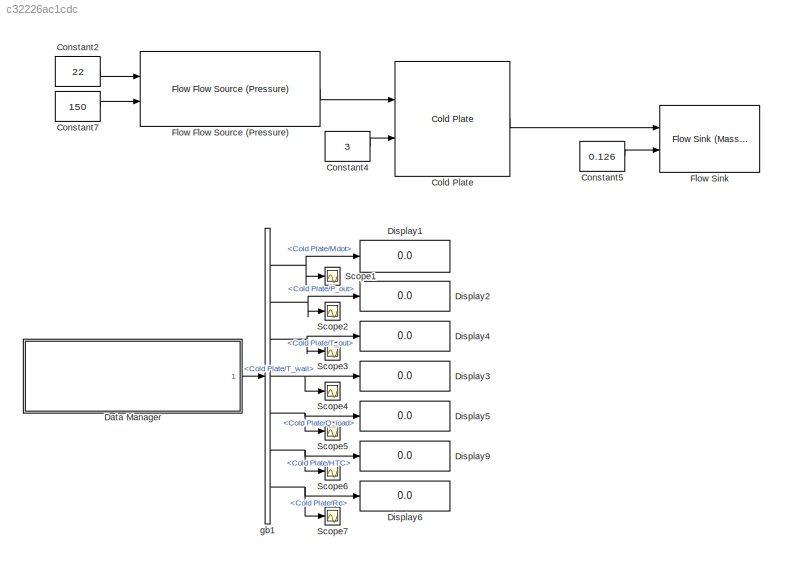
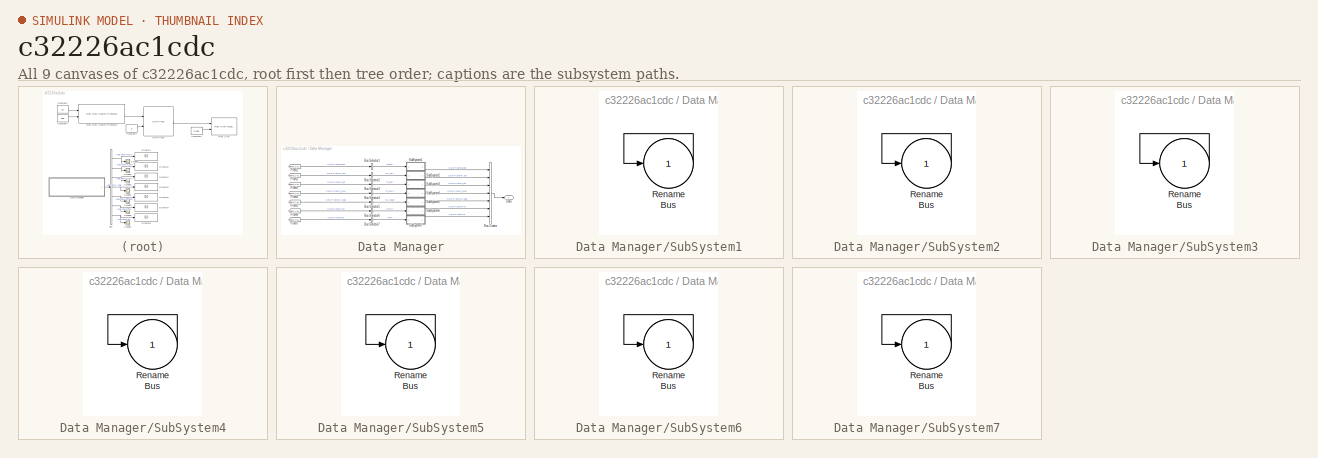
[diagram: thumbnail index - all 9 canvases of the model, root first then tree order]
MODEL slx_c32226ac1cdc
KIND model
BLOCK [Reference] Cold Plate  REF=DAEMOT_Lib/Components/Cold Plate
  Cp_wall = .9
  D = 0.007
  E = 2.4e6
  KL = 0
  L = 0.75
  M_wall = 0.77632
  PAF = 1
  P_init = 101
  Ports = [2, 1]
  SourceBlock = DAEMOT_Lib/Components/Cold Plate
  SourceType = Cold Plate
  T_init = 22
  Tw_init = 22
  dH = -0.2
  e_rough = 0.0015*1e-3
  f = 0.05
  fld = PG50
  t = 0.0015
  v = 0.4
BLOCK [Constant] Constant2
  Value = 22
BLOCK [Constant] Constant4
  Value = 3
BLOCK [Constant] Constant5
  Value = 0.126
BLOCK [Constant] Constant7
  Value = 150
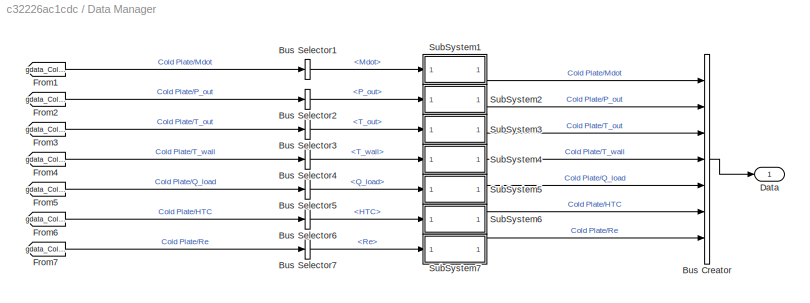
BLOCK [SubSystem] Data Manager
  AncestorBlock = DAEMOT_Lib/Support Functions/Data Manager
  OpenFcn = data_manager
  Ports = [0, 1]
  RequestExecContextInheritance = off
  UserDataPersistent = on
BLOCK [BusCreator] Data Manager/Bus Creator
  DisplayOption = bar
  Inputs = 7
  Ports = [7, 1]
BLOCK [BusSelector] Data Manager/Bus Selector1
  OutputSignals = Mdot
  Ports = [1, 1]
BLOCK [BusSelector] Data Manager/Bus Selector2
  OutputSignals = P_out
  Ports = [1, 1]
BLOCK [BusSelector] Data Manager/Bus Selector3
  OutputSignals = T_out
  Ports = [1, 1]
BLOCK [BusSelector] Data Manager/Bus Selector4
  OutputSignals = T_wall
  Ports = [1, 1]
BLOCK [BusSelector] Data Manager/Bus Selector5
  OutputSignals = Q_load
  Ports = [1, 1]
BLOCK [BusSelector] Data Manager/Bus Selector6
  OutputSignals = HTC
  Ports = [1, 1]
BLOCK [BusSelector] Data Manager/Bus Selector7
  OutputSignals = Re
  Ports = [1, 1]
BLOCK [Outport] Data Manager/Data
  IconDisplay = Port number
BLOCK [From] Data Manager/From1
  GotoTag = gdata_Cold_Plate_testColdPlatedata_sink1
  UserDataPersistent = on
BLOCK [From] Data Manager/From2
  GotoTag = gdata_Cold_Plate_testColdPlatedata_sink1
  UserDataPersistent = on
BLOCK [From] Data Manager/From3
  GotoTag = gdata_Cold_Plate_testColdPlatedata_sink1
  UserDataPersistent = on
BLOCK [From] Data Manager/From4
  GotoTag = gdata_Cold_Plate_testColdPlatedata_sink1
  UserDataPersistent = on
BLOCK [From] Data Manager/From5
  GotoTag = gdata_Cold_Plate_testColdPlatedata_sink1
  UserDataPersistent = on
BLOCK [From] Data Manager/From6
  GotoTag = gdata_Cold_Plate_testColdPlatedata_sink1
  UserDataPersistent = on
BLOCK [From] Data Manager/From7
  GotoTag = gdata_Cold_Plate_testColdPlatedata_sink1
  UserDataPersistent = on
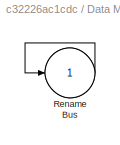
BLOCK [SubSystem] Data Manager/SubSystem1
  Ports = [1, 1]
  RequestExecContextInheritance = off
BLOCK [Outport] Data Manager/SubSystem1/Bus
  IconDisplay = Port number
BLOCK [Inport] Data Manager/SubSystem1/Rename
  IconDisplay = Port number
BLOCK [SubSystem] Data Manager/SubSystem2
  Ports = [1, 1]
  RequestExecContextInheritance = off
BLOCK [Outport] Data Manager/SubSystem2/Bus
  IconDisplay = Port number
BLOCK [Inport] Data Manager/SubSystem2/Rename
  IconDisplay = Port number
BLOCK [SubSystem] Data Manager/SubSystem3
  Ports = [1, 1]
  RequestExecContextInheritance = off
BLOCK [Outport] Data Manager/SubSystem3/Bus
  IconDisplay = Port number
BLOCK [Inport] Data Manager/SubSystem3/Rename
  IconDisplay = Port number
BLOCK [SubSystem] Data Manager/SubSystem4
  Ports = [1, 1]
  RequestExecContextInheritance = off
BLOCK [Outport] Data Manager/SubSystem4/Bus
  IconDisplay = Port number
BLOCK [Inport] Data Manager/SubSystem4/Rename
  IconDisplay = Port number
BLOCK [SubSystem] Data Manager/SubSystem5
  Ports = [1, 1]
  RequestExecContextInheritance = off
BLOCK [Outport] Data Manager/SubSystem5/Bus
  IconDisplay = Port number
BLOCK [Inport] Data Manager/SubSystem5/Rename
  IconDisplay = Port number
BLOCK [SubSystem] Data Manager/SubSystem6
  Ports = [1, 1]
  RequestExecContextInheritance = off
BLOCK [Outport] Data Manager/SubSystem6/Bus
  IconDisplay = Port number
BLOCK [Inport] Data Manager/SubSystem6/Rename
  IconDisplay = Port number
BLOCK [SubSystem] Data Manager/SubSystem7
  Ports = [1, 1]
  RequestExecContextInheritance = off
BLOCK [Outport] Data Manager/SubSystem7/Bus
  IconDisplay = Port number
BLOCK [Inport] Data Manager/SubSystem7/Rename
  IconDisplay = Port number
BLOCK [Display] Display1
  Decimation = 1
  Ports = [1]
BLOCK [Display] Display2
  Decimation = 1
  Ports = [1]
BLOCK [Display] Display3
  Decimation = 1
  Ports = [1]
BLOCK [Display] Display4
  Decimation = 1
  Ports = [1]
BLOCK [Display] Display5
  Decimation = 1
  Ports = [1]
BLOCK [Display] Display6
  Decimation = 1
  Ports = [1]
BLOCK [Display] Display9
  Decimation = 1
  Ports = [1]
BLOCK [Reference] Flow Flow Source (Pressure)  REF=DAEMOT_Lib/Components/Flow Flow Source (Pressure)
  M = 0
  M_ext = on
  P = 0
  P_ext = on
  Ports = [2, 1]
  SourceBlock = DAEMOT_Lib/Components/Flow Flow Source (Pressure)
  SourceType = Flow Source (Pressure)
  T = 0
  T_ext = on
BLOCK [Reference] Flow Sink  REF=DAEMOT_Lib/Components/Flow Sink (Mass Flow Rate)
  M = 0
  M_ext = on
  P = 0
  P_ext = on
  Ports = [2]
  SourceBlock = DAEMOT_Lib/Components/Flow Sink (Mass Flow Rate)
  SourceType = Flow Sink (Mass Flow Rate)
  T = 0
  T_ext = on
BLOCK [Scope] Scope1
  Floating = off
  LimitDataPoints = off
  NumInputPorts = 1
  Ports = [1]
  ShowLegends = off
  ZoomMode = xonly
BLOCK [Scope] Scope2
  Floating = off
  LimitDataPoints = off
  NumInputPorts = 1
  Ports = [1]
  SaveName = ScopeData1
  ShowLegends = off
BLOCK [Scope] Scope3
  Floating = off
  LimitDataPoints = off
  NumInputPorts = 1
  Ports = [1]
  SaveName = ScopeData2
  ShowLegends = off
BLOCK [Scope] Scope4
  Floating = off
  LimitDataPoints = off
  NumInputPorts = 1
  Ports = [1]
  SaveName = ScopeData3
  ShowLegends = off
BLOCK [Scope] Scope5
  Floating = off
  LimitDataPoints = off
  NumInputPorts = 1
  Ports = [1]
  SaveName = ScopeData4
  ShowLegends = off
BLOCK [Scope] Scope6
  Floating = off
  LimitDataPoints = off
  NumInputPorts = 1
  Ports = [1]
  SaveName = ScopeData5
  ShowLegends = off
BLOCK [Scope] Scope7
  Floating = off
  LimitDataPoints = off
  NumInputPorts = 1
  Ports = [1]
  SaveName = ScopeData6
  ShowLegends = off
BLOCK [BusSelector] gb1
  OutputSignals = Cold Plate/Mdot,Cold Plate/P_out,Cold Plate/T_out,Cold Plate/T_wall,Cold Plate/Q_load,Cold Plate/HTC,Cold Plate/Re
  Ports = [1, 7]
LINE Cold Plate:1 -> Flow Sink:1
LINE Constant2:1 -> Flow Flow Source (Pressure):1
LINE Constant4:1 -> Cold Plate:2
LINE Constant5:1 -> Flow Sink:2
LINE Constant7:1 -> Flow Flow Source (Pressure):2
LINE Data Manager:1 -> gb1:1
LINE Flow Flow Source (Pressure):1 -> Cold Plate:1
NET gb1:1 -> Display1:1, Scope1:1
NET gb1:2 -> Display2:1, Scope2:1
NET gb1:3 -> Display4:1, Scope3:1
NET gb1:4 -> Display3:1, Scope4:1
NET gb1:5 -> Display5:1, Scope5:1
NET gb1:6 -> Display9:1, Scope6:1
NET gb1:7 -> Display6:1, Scope7:1
note: NET lines group one-source signal fan-out (src -> all destinations, sorted); 1:1 wires keep LINE
